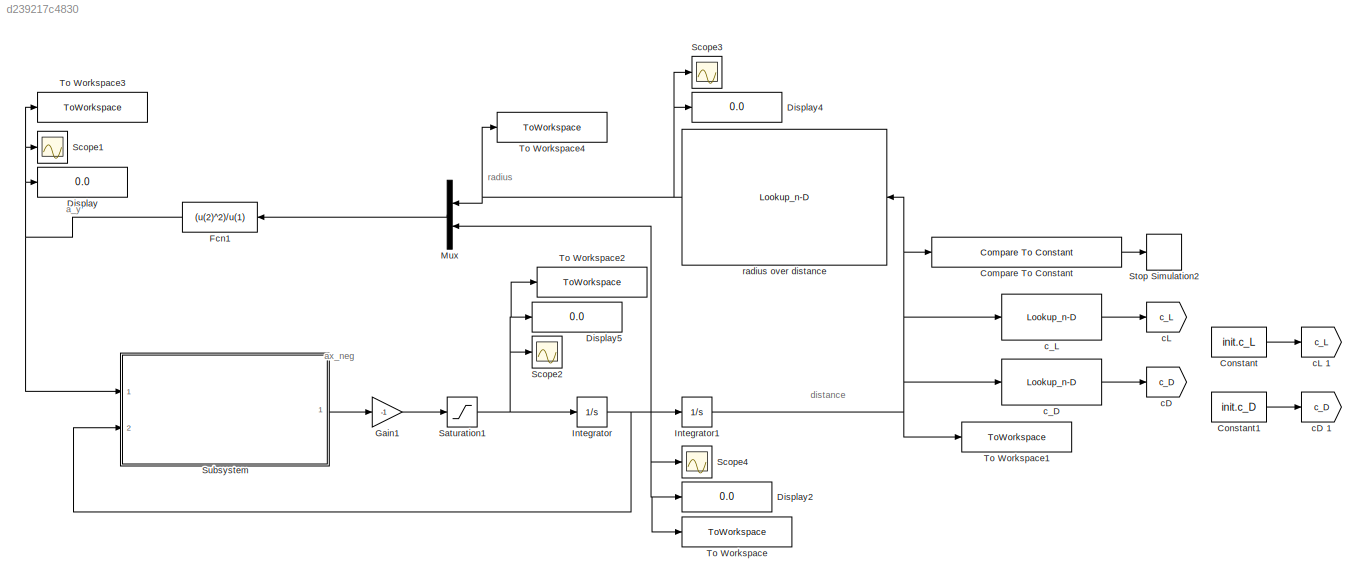
MODEL slx_d239217c4830
KIND model
CONFIG AbsTol = auto
CONFIG EnableMultiTasking = off
CONFIG FixedStep = 1e-3
CONFIG MaxStep = 1e-3
CONFIG MinStep = auto
CONFIG RelTol = 1e-3
CONFIG SampleTimeConstraint = Unconstrained
CONFIG Solver = VariableStepAuto
CONFIG SolverName = VariableStepAuto
CONFIG StartTime = 0
CONFIG StopTime = inf
BLOCK [Reference] Compare To Constant  REF=simulink/Logic and Bit
Operations/Compare
To Constant
  Ports = [1, 1]
  SourceBlock = simulink/Logic and Bit\nOperations/Compare\nTo Constant
  SourceProductBaseCode = SL
  SourceProductName = Simulink
  SourceType = Compare To Constant
BLOCK [Constant] Constant
  Value = init.c_L
BLOCK [Constant] Constant1
  Value = init.c_D
BLOCK [Display] Display
  Decimation = 1
  Ports = [1]
BLOCK [Display] Display2
  Decimation = 1
  Ports = [1]
BLOCK [Display] Display4
  Decimation = 1
  Ports = [1]
BLOCK [Display] Display5
  Decimation = 1
  Ports = [1]
BLOCK [Fcn] Fcn1
  Expr = (u(2)^2)/u(1)
BLOCK [Gain] Gain1
  Gain = -1
  OutDataTypeStr = Inherit: Inherit via internal rule
  ParamDataTypeStr = Inherit: Inherit via internal rule
  SaturateOnIntegerOverflow = off
BLOCK [Integrator] Integrator
  InitialCondition = apexVelocity
  Ports = [1, 1]
BLOCK [Integrator] Integrator1
  InitialCondition = currentDistance
  Ports = [1, 1]
BLOCK [Mux] Mux
  DisplayOption = bar
  Inputs = 2
  Ports = [2, 1]
BLOCK [Saturate] Saturation1
  InputPortMap = u0
  LowerLimit = 0
  Ports = [1, 1]
  UpperLimit = inf
BLOCK [Scope] Scope1
  Floating = off
  NumInputPorts = 1
  Ports = [1]
  ScopeSpecificationString = Simulink.scopes.TimeScopeBlockCfg('CurrentConfiguration', extmgr.ConfigurationSet(extmgr.Configuration('Core','General UI',true),extmgr.Configuration('Core','Source UI',true),extmgr.Configuration('Sources','WiredSimulink',true,'DataLoggingVariableName','ScopeData1'),extmgr.Configuration('Visuals','Time Domain',true,'SerializedDisplays',{struct('MinYLimReal','-0.353','MaxYLimReal','7.9523','YLabelR...<+1385ch>
BLOCK [Scope] Scope2
  Floating = off
  NumInputPorts = 1
  Ports = [1]
  ScopeSpecificationString = Simulink.scopes.TimeScopeBlockCfg('CurrentConfiguration', extmgr.ConfigurationSet(extmgr.Configuration('Core','General UI',true),extmgr.Configuration('Core','Source UI',true),extmgr.Configuration('Sources','WiredSimulink',true,'DataLoggingVariableName','ScopeData2'),extmgr.Configuration('Visuals','Time Domain',true,'SerializedDisplays',{struct('MinYLimReal','0.06649','MaxYLimReal','16.61774','YLab...<+1416ch>
BLOCK [Scope] Scope3
  Floating = off
  NumInputPorts = 1
  Ports = [1]
  ScopeSpecificationString = Simulink.scopes.TimeScopeBlockCfg('CurrentConfiguration', extmgr.ConfigurationSet(extmgr.Configuration('Core','General UI',true),extmgr.Configuration('Core','Source UI',true),extmgr.Configuration('Sources','WiredSimulink',true,'DataLoggingVariableName','ScopeData3'),extmgr.Configuration('Visuals','Time Domain',true,'SerializedDisplays',{struct('MinYLimReal','8.94717','MaxYLimReal','41.26074','YLab...<+1410ch>
BLOCK [Scope] Scope4
  Floating = off
  NumInputPorts = 1
  Ports = [1]
  ScopeSpecificationString = Simulink.scopes.TimeScopeBlockCfg('CurrentConfiguration', extmgr.ConfigurationSet(extmgr.Configuration('Core','General UI',true),extmgr.Configuration('Core','Source UI',true),extmgr.Configuration('Sources','WiredSimulink',true,'DataLoggingVariableName','ScopeData4'),extmgr.Configuration('Visuals','Time Domain',true,'SerializedDisplays',{struct('MinYLimReal','8.99955','MaxYLimReal','10.99955','YLab...<+1402ch>
BLOCK [Stop] Stop Simulation2
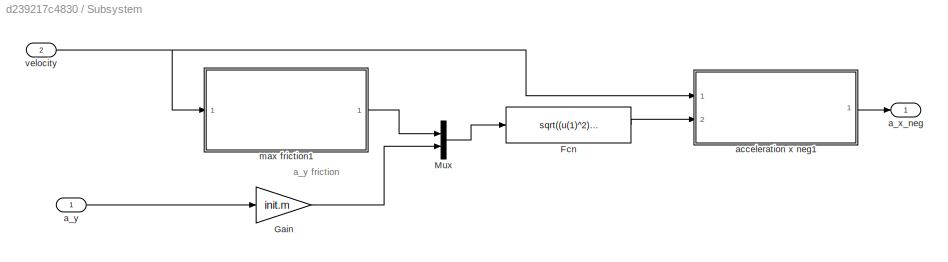
BLOCK [SubSystem] Subsystem
  Ports = [2, 1]
  RequestExecContextInheritance = off
BLOCK [Fcn] Subsystem/Fcn
  Expr = sqrt((u(1)^2)-(u(2)^2))
BLOCK [Gain] Subsystem/Gain
  Gain = init.m
  OutDataTypeStr = Inherit: Inherit via internal rule
  ParamDataTypeStr = Inherit: Inherit via internal rule
  SaturateOnIntegerOverflow = off
BLOCK [Mux] Subsystem/Mux
  DisplayOption = bar
  Inputs = 2
  Ports = [2, 1]
BLOCK [Outport] Subsystem/a_x_neg
  IconDisplay = Port number
BLOCK [Inport] Subsystem/a_y 
  IconDisplay = Port number
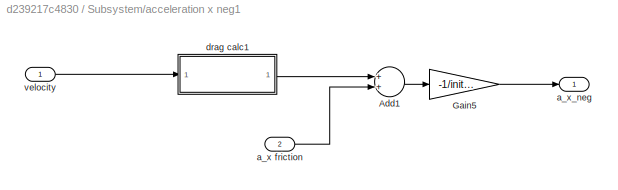
BLOCK [SubSystem] Subsystem/acceleration x neg1
  Ports = [2, 1]
  RequestExecContextInheritance = off
BLOCK [Sum] Subsystem/acceleration x neg1/Add1
  InputSameDT = off
  OutDataTypeStr = Inherit: Inherit via internal rule
  Ports = [2, 1]
  SaturateOnIntegerOverflow = off
BLOCK [Gain] Subsystem/acceleration x neg1/Gain5
  Gain = -1/init.m
  OutDataTypeStr = Inherit: Inherit via internal rule
  ParamDataTypeStr = Inherit: Inherit via internal rule
  SaturateOnIntegerOverflow = off
BLOCK [Inport] Subsystem/acceleration x neg1/a_x friction
  IconDisplay = Port number
  Port = 2
BLOCK [Outport] Subsystem/acceleration x neg1/a_x_neg 
  IconDisplay = Port number
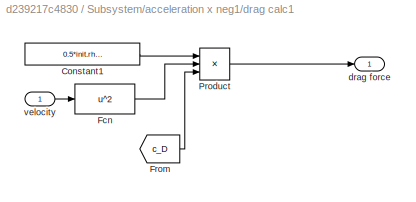
BLOCK [SubSystem] Subsystem/acceleration x neg1/drag calc1
  Ports = [1, 1]
  RequestExecContextInheritance = off
BLOCK [Constant] Subsystem/acceleration x neg1/drag calc1/Constant1
  Value = 0.5*init.rhoAir*init.ae_A
BLOCK [Fcn] Subsystem/acceleration x neg1/drag calc1/Fcn
  Expr = u^2
BLOCK [From] Subsystem/acceleration x neg1/drag calc1/From
  GotoTag = c_D
  TagVisibility = global
BLOCK [Product] Subsystem/acceleration x neg1/drag calc1/Product
  InputSameDT = off
  Inputs = 3
  OutDataTypeStr = Inherit: Inherit via internal rule
  Ports = [3, 1]
  RndMeth = Floor
  SaturateOnIntegerOverflow = off
BLOCK [Outport] Subsystem/acceleration x neg1/drag calc1/drag force 
  IconDisplay = Port number
BLOCK [Inport] Subsystem/acceleration x neg1/drag calc1/velocity
  IconDisplay = Port number
BLOCK [Inport] Subsystem/acceleration x neg1/velocity
  IconDisplay = Port number
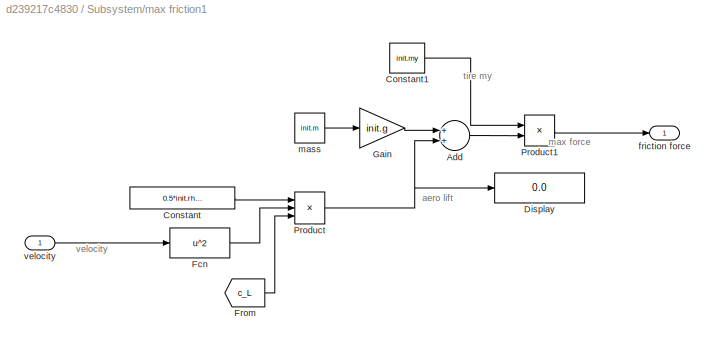
BLOCK [SubSystem] Subsystem/max friction1
  Ports = [1, 1]
  RequestExecContextInheritance = off
BLOCK [Sum] Subsystem/max friction1/Add
  InputSameDT = off
  OutDataTypeStr = Inherit: Inherit via internal rule
  Ports = [2, 1]
  SaturateOnIntegerOverflow = off
BLOCK [Constant] Subsystem/max friction1/Constant
  Value = 0.5*init.rhoAir*init.ae_A
BLOCK [Constant] Subsystem/max friction1/Constant1
  Value = init.my
BLOCK [Display] Subsystem/max friction1/Display
  Decimation = 1
  Ports = [1]
BLOCK [Fcn] Subsystem/max friction1/Fcn
  Expr = u^2
BLOCK [From] Subsystem/max friction1/From
  GotoTag = c_L
  TagVisibility = global
BLOCK [Gain] Subsystem/max friction1/Gain
  Gain = init.g
  OutDataTypeStr = Inherit: Inherit via internal rule
  ParamDataTypeStr = Inherit: Inherit via internal rule
  SaturateOnIntegerOverflow = off
BLOCK [Product] Subsystem/max friction1/Product
  InputSameDT = off
  Inputs = 3
  OutDataTypeStr = Inherit: Inherit via internal rule
  Ports = [3, 1]
  RndMeth = Floor
  SaturateOnIntegerOverflow = off
BLOCK [Product] Subsystem/max friction1/Product1
  InputSameDT = off
  OutDataTypeStr = Inherit: Inherit via internal rule
  Ports = [2, 1]
  RndMeth = Floor
  SaturateOnIntegerOverflow = off
BLOCK [Outport] Subsystem/max friction1/friction force
  IconDisplay = Port number
BLOCK [Constant] Subsystem/max friction1/mass 
  Value = init.m
BLOCK [Inport] Subsystem/max friction1/velocity
  IconDisplay = Port number
BLOCK [Inport] Subsystem/velocity 
  IconDisplay = Port number
  Port = 2
BLOCK [ToWorkspace] To Workspace
  FixptAsFi = on
  MaxDataPoints = inf
  Ports = [1]
  SampleTime = -1
  VariableName = velocity
BLOCK [ToWorkspace] To Workspace1
  FixptAsFi = on
  MaxDataPoints = inf
  Ports = [1]
  SampleTime = -1
  VariableName = distance
BLOCK [ToWorkspace] To Workspace2
  FixptAsFi = on
  MaxDataPoints = inf
  Ports = [1]
  SampleTime = -1
  VariableName = a_x
BLOCK [ToWorkspace] To Workspace3
  FixptAsFi = on
  MaxDataPoints = inf
  Ports = [1]
  SampleTime = -1
  VariableName = a_y
BLOCK [ToWorkspace] To Workspace4
  FixptAsFi = on
  MaxDataPoints = inf
  Ports = [1]
  SampleTime = -1
  VariableName = radius
BLOCK [Goto] cD 
  Commented = on
  GotoTag = c_D
  TagVisibility = global
BLOCK [Goto] cD 1
  GotoTag = c_D
  TagVisibility = global
BLOCK [Goto] cL 
  Commented = on
  GotoTag = c_L
  TagVisibility = global
BLOCK [Goto] cL 1
  GotoTag = c_L
  TagVisibility = global
BLOCK [Lookup_n-D] c_D 
  BreakpointsForDimension1 = [0:init.ptDistance:(length(course)-1)*init.ptDistance]
  Commented = on
  InternalRulePriority = Speed
  NumberOfTableDimensions = 1
  Ports = [1, 1]
  RndMeth = Simplest
  Table = aeroMap(:,2)
BLOCK [Lookup_n-D] c_L
  BreakpointsForDimension1 = [0:init.ptDistance:(length(course)-1)*init.ptDistance]
  Commented = on
  InternalRulePriority = Speed
  NumberOfTableDimensions = 1
  Ports = [1, 1]
  RndMeth = Simplest
  Table = aeroMap(:,1)
BLOCK [Lookup_n-D] radius over distance
  BreakpointsForDimension1 = [0:init.ptDistance:(length(course)-1)*init.ptDistance]
  InternalRulePriority = Speed
  NumberOfTableDimensions = 1
  Ports = [1, 1]
  RndMeth = Simplest
  Table = flip(course(:,3))
ANNOTATION (root): a_y
ANNOTATION (root): ax_neg
ANNOTATION (root): distance
ANNOTATION (root): radius
ANNOTATION Subsystem: a_y friction
ANNOTATION Subsystem/max friction1: aero lift
ANNOTATION Subsystem/max friction1: max force
ANNOTATION Subsystem/max friction1: tire my
ANNOTATION Subsystem/max friction1: velocity
LINE Compare To Constant:1 -> Stop Simulation2:1
LINE Constant1:1 -> cD 1:1
LINE Constant:1 -> cL 1:1
NET Fcn1:1 -> Display:1, Scope1:1, Subsystem:1, To Workspace3:1
LINE Gain1:1 -> Saturation1:1
NET Integrator1:1 -> Compare To Constant:1, To Workspace1:1, c_D :1, c_L:1, radius over distance:1
NET Integrator:1 -> Display2:1, Integrator1:1, Mux:2, Scope4:1, Subsystem:2, To Workspace:1
LINE Mux:1 -> Fcn1:1
NET Saturation1:1 -> Display5:1, Integrator:1, Scope2:1, To Workspace2:1
LINE Subsystem/Fcn:1 -> Subsystem/acceleration x neg1:2
LINE Subsystem/Gain:1 -> Subsystem/Mux:2
LINE Subsystem/Mux:1 -> Subsystem/Fcn:1
LINE Subsystem/a_y :1 -> Subsystem/Gain:1
LINE Subsystem/acceleration x neg1/Add1:1 -> Subsystem/acceleration x neg1/Gain5:1
LINE Subsystem/acceleration x neg1/Gain5:1 -> Subsystem/acceleration x neg1/a_x_neg :1
LINE Subsystem/acceleration x neg1/a_x friction:1 -> Subsystem/acceleration x neg1/Add1:2
LINE Subsystem/acceleration x neg1/drag calc1/Constant1:1 -> Subsystem/acceleration x neg1/drag calc1/Product:1
LINE Subsystem/acceleration x neg1/drag calc1/Fcn:1 -> Subsystem/acceleration x neg1/drag calc1/Product:2
LINE Subsystem/acceleration x neg1/drag calc1/From:1 -> Subsystem/acceleration x neg1/drag calc1/Product:3
LINE Subsystem/acceleration x neg1/drag calc1/Product:1 -> Subsystem/acceleration x neg1/drag calc1/drag force :1
LINE Subsystem/acceleration x neg1/drag calc1/velocity:1 -> Subsystem/acceleration x neg1/drag calc1/Fcn:1
LINE Subsystem/acceleration x neg1/drag calc1:1 -> Subsystem/acceleration x neg1/Add1:1
LINE Subsystem/acceleration x neg1/velocity:1 -> Subsystem/acceleration x neg1/drag calc1:1
LINE Subsystem/acceleration x neg1:1 -> Subsystem/a_x_neg:1
LINE Subsystem/max friction1/Add:1 -> Subsystem/max friction1/Product1:2
LINE Subsystem/max friction1/Constant1:1 -> Subsystem/max friction1/Product1:1
LINE Subsystem/max friction1/Constant:1 -> Subsystem/max friction1/Product:1
LINE Subsystem/max friction1/Fcn:1 -> Subsystem/max friction1/Product:2
LINE Subsystem/max friction1/From:1 -> Subsystem/max friction1/Product:3
LINE Subsystem/max friction1/Gain:1 -> Subsystem/max friction1/Add:1
LINE Subsystem/max friction1/Product1:1 -> Subsystem/max friction1/friction force:1
NET Subsystem/max friction1/Product:1 -> Subsystem/max friction1/Add:2, Subsystem/max friction1/Display:1
LINE Subsystem/max friction1/mass :1 -> Subsystem/max friction1/Gain:1
LINE Subsystem/max friction1/velocity:1 -> Subsystem/max friction1/Fcn:1
LINE Subsystem/max friction1:1 -> Subsystem/Mux:1
NET Subsystem/velocity :1 -> Subsystem/acceleration x neg1:1, Subsystem/max friction1:1
LINE Subsystem:1 -> Gain1:1
LINE c_D :1 -> cD :1
LINE c_L:1 -> cL :1
NET radius over distance:1 -> Display4:1, Mux:1, Scope3:1, To Workspace4:1
note: NET lines group one-source signal fan-out (src -> all destinations, sorted); 1:1 wires keep LINE
